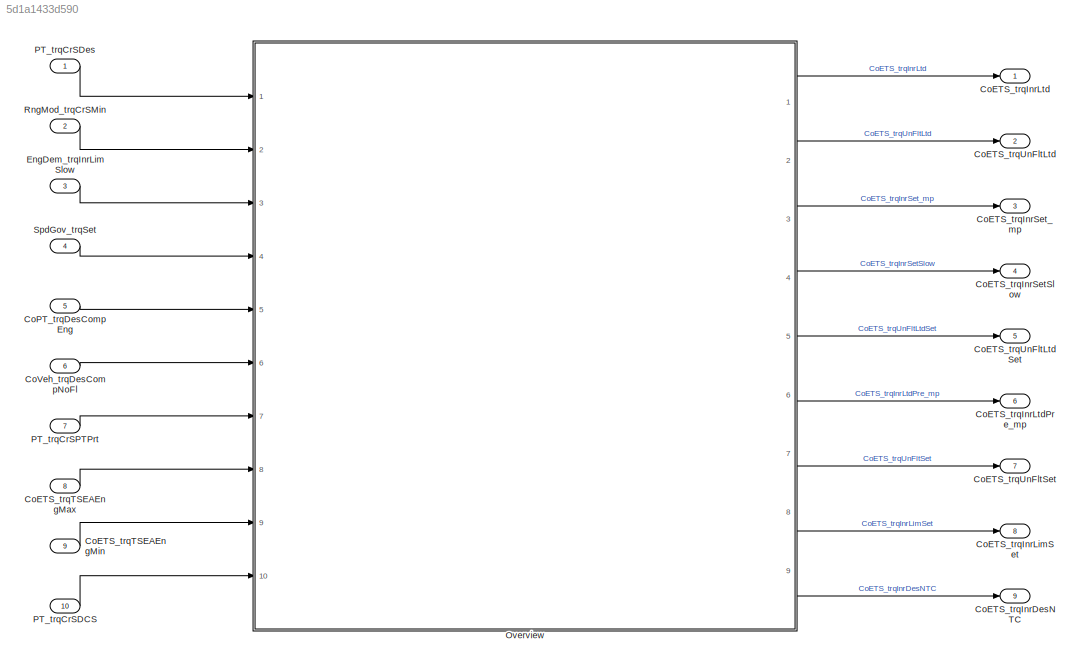
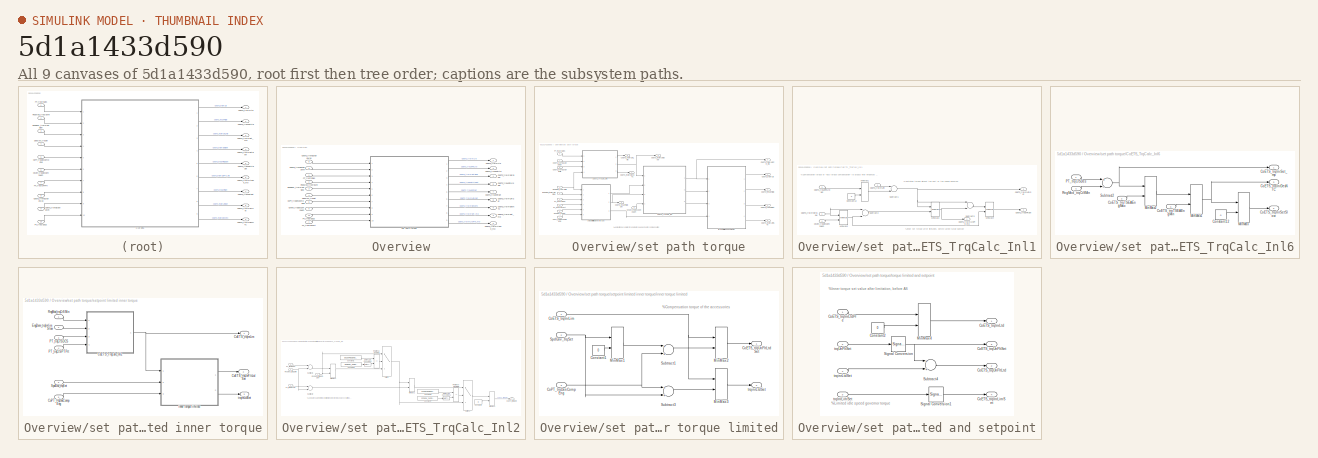
[diagram: thumbnail index - all 9 canvases of the model, root first then tree order]
MODEL slx_5d1a1433d590
KIND model
CONFIG AbsTol = auto
CONFIG EnableMultiTasking = off
CONFIG FixedStep = 0.001
CONFIG MaxStep = auto
CONFIG MinStep = auto
CONFIG RelTol = 1e-3
CONFIG SampleTimeConstraint = Unconstrained
CONFIG Solver = FixedStepDiscrete
CONFIG SolverName = FixedStepDiscrete
CONFIG StartTime = 0.0
CONFIG StopTime = Inf
BLOCK [Outport] CoETS_trqInrDesNTC
  IconDisplay = Port number
  Port = 9
BLOCK [Outport] CoETS_trqInrLimSet
  IconDisplay = Port number
  Port = 8
BLOCK [Outport] CoETS_trqInrLtd
  IconDisplay = Port number
BLOCK [Outport] CoETS_trqInrLtdPre_mp
  IconDisplay = Port number
  Port = 6
BLOCK [Outport] CoETS_trqInrSetSlow
  IconDisplay = Port number
  Port = 4
BLOCK [Outport] CoETS_trqInrSet_mp
  IconDisplay = Port number
  Port = 3
BLOCK [Inport] CoETS_trqTSEAEngMax
  Description = Application parameter for requested propulsion torque to engine(crankshaft torque)
  IconDisplay = Port number
  OutDataTypeStr = Torq
  OutMax = 3276
  OutMin = -3276
  Port = 8
  PortDimensions = [1 1]
  Unit = Nm
BLOCK [Inport] CoETS_trqTSEAEngMin
  Description = minimal crankshaft torque
  IconDisplay = Port number
  OutDataTypeStr = Torq
  OutMax = 3276
  OutMin = -3276
  Port = 9
  PortDimensions = [1 1]
  Unit = Nm
BLOCK [Outport] CoETS_trqUnFltLtd
  IconDisplay = Port number
  Port = 2
BLOCK [Outport] CoETS_trqUnFltLtdSet
  IconDisplay = Port number
  Port = 5
BLOCK [Outport] CoETS_trqUnFltSet
  IconDisplay = Port number
  Port = 7
BLOCK [Inport] CoPT_trqDesCompEng
  Description = inner engine limted lead torque
  IconDisplay = Port number
  OutDataTypeStr = Torq
  OutMax = 3276
  OutMin = -3276
  Port = 5
  PortDimensions = [1 1]
  Unit = Nm
BLOCK [Inport] CoVeh_trqDesCompNoFl
  Description = lead torque of SpdGov on the air path
  IconDisplay = Port number
  OutDataTypeStr = Torq
  OutMax = 3000
  OutMin = -3000
  Port = 6
  PortDimensions = [1 1]
  Unit = Nm
BLOCK [Inport] EngDem_trqInrLimSlow
  Description = status speed control SpdGov
  IconDisplay = Port number
  OutDataTypeStr = Torq
  OutMax = 3276.7
  OutMin = -3276.8
  Port = 3
  PortDimensions = [1 1]
BLOCK [SubSystem] Overview
  Ports = [10, 9]
  RequestExecContextInheritance = off
BLOCK [Outport] Overview/CoETS_trqInrDesNTC
  Description = Additional desired engine friction Nm
  IconDisplay = Port number
  OutMax = 3276
  OutMin = -3276
  Port = 9
  Tag = Nm
BLOCK [Outport] Overview/CoETS_trqInrLimSet
  Description = Limitation torque without the part of the speed governor
  IconDisplay = Port number
  OutMax = 3000
  OutMin = -3000
  Port = 8
  Tag = Nm
BLOCK [Outport] Overview/CoETS_trqInrLtd
  Description = inner torque set value after limitation, before AS
  IconDisplay = Port number
  OutMax = 3000
  OutMin = -3000
  Tag = Nm
BLOCK [Outport] Overview/CoETS_trqInrLtdPre_mp
  Description = inner set torque after limitation, before active surge damper
  IconDisplay = Port number
  OutMax = 3276
  OutMin = -3276
  Port = 6
  Tag = Nm
BLOCK [Outport] Overview/CoETS_trqInrSetSlow
  Description = Filtered inner torque ( positive torque) desired value (standard signal path) generated out of CoPT_trqDesEng
  IconDisplay = Port number
  OutMax = 3276
  OutMin = -3276
  Port = 4
  Tag = Nm
BLOCK [Outport] Overview/CoETS_trqInrSet_mp
  Description = Intermediate inner torque for the set path without filteration
  IconDisplay = Port number
  OutMax = 3276
  OutMin = -3276
  Port = 3
  Tag = Nm
BLOCK [Inport] Overview/CoETS_trqTSEAEngMax
  Description = torque request to engine intervention decrement(Max)
  IconDisplay = Port number
  OutMax = 3276
  OutMin = -3276
  Port = 8
  Tag = Nm
BLOCK [Inport] Overview/CoETS_trqTSEAEngMin
  Description = torque request to engine intervention increment(Min)
  IconDisplay = Port number
  OutMax = 3276
  OutMin = -3276
  Port = 9
  Tag = Nm
BLOCK [Outport] Overview/CoETS_trqUnFltLtd
  Description = Limited idle speed governor torque
  IconDisplay = Port number
  OutMax = 3276
  OutMin = -3276
  Port = 2
  Tag = Nm
BLOCK [Outport] Overview/CoETS_trqUnFltLtdSet
  Description = Compensation torque of the accessories
  IconDisplay = Port number
  OutMax = 3276
  OutMin = -3276
  Port = 5
  Tag = Nm
BLOCK [Outport] Overview/CoETS_trqUnFltSet
  Description = Compensation torque of "loss torque compensation" to bypass filter influences on the set path which is partly compensated
  IconDisplay = Port number
  OutMax = 3276
  OutMin = -3276
  Port = 7
  Tag = Nm
BLOCK [Inport] Overview/CoPT_trqDesCompEng
  Description = Application parameter for engine torque desired for compensation
  IconDisplay = Port number
  OutMax = 3276
  OutMin = -3276
  Port = 5
  Tag = Nm
BLOCK [Inport] Overview/CoVeh_trqDesCompNoFl
  Description = compensation torque with the shares,which not slur by the drive behaviour filter
  IconDisplay = Port number
  OutMax = 3000
  OutMin = -3000
  Port = 6
  Tag = Nm
BLOCK [Inport] Overview/EngDem_trqInrLimSlow
  Description = inner engine limted torque for Slow Path
  IconDisplay = Port number
  OutMax = 3276.7
  OutMin = -3276.8
  Port = 3
  Tag = Nm
BLOCK [Inport] Overview/PT_trqCrSDCS
  Description = crankshaft torque for request decrcment
  IconDisplay = Port number
  OutMax = 3000
  OutMin = -3000
  Port = 10
  Tag = Nm
BLOCK [Inport] Overview/PT_trqCrSDes
  Description = Application parameter for requested propulsion torque to engine(crankshaft torque)
  IconDisplay = Port number
  OutMax = 3000
  OutMin = -3000
  Tag = Nm
BLOCK [Inport] Overview/PT_trqCrSPTPrt
  Description = Application parameter for powertrain protection train protection torque(crankshaft torque)
  IconDisplay = Port number
  OutMax = 3000
  OutMin = -3000
  Port = 7
  Tag = Nm
BLOCK [Inport] Overview/RngMod_trqCrSMin
  Description = minimal crankshaft torque
  IconDisplay = Port number
  OutMax = 3276.7
  OutMin = -3276.8
  Port = 2
  Tag = Nm
BLOCK [Inport] Overview/SpdGov_trqSet
  Description = Set point torque of SpdGov on the fuel path
  IconDisplay = Port number
  OutMax = 3000
  OutMin = -3000
  Port = 4
  Tag = Nm
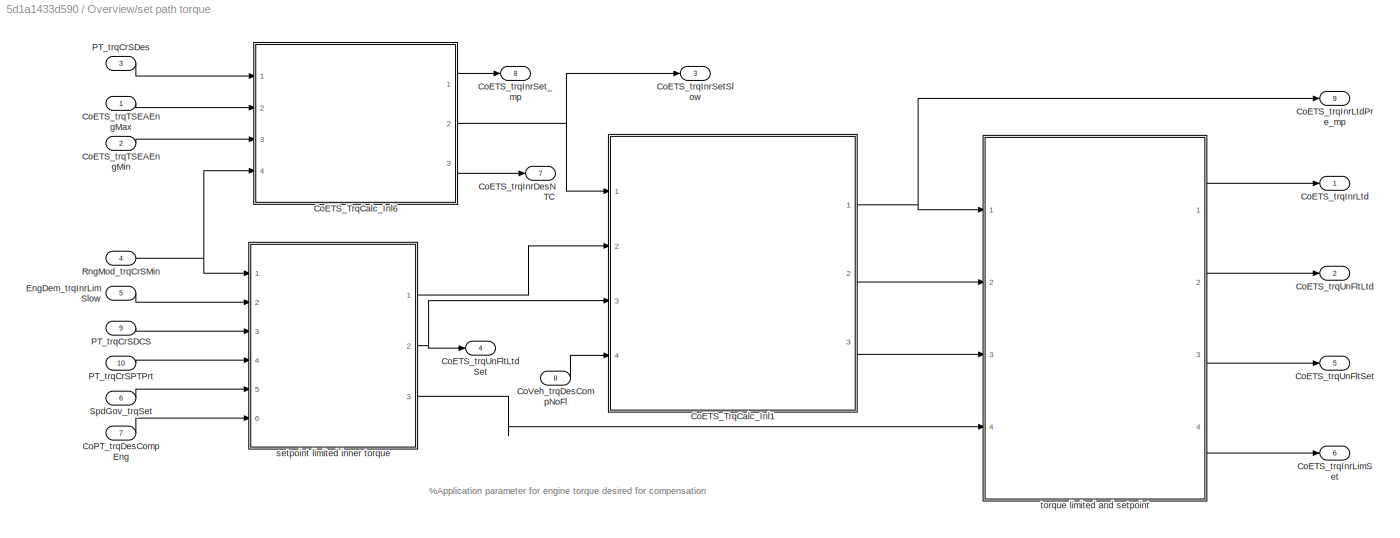
BLOCK [SubSystem] Overview/set path torque
  Ports = [10, 9]
  RequestExecContextInheritance = off
BLOCK [SubSystem] Overview/set path torque/CoETS_TrqCalc_Inl1
  Ports = [4, 3]
  RequestExecContextInheritance = off
BLOCK [Inport] Overview/set path torque/CoETS_TrqCalc_Inl1/CoETS_trqInrLim
  IconDisplay = Port number
  Port = 2
BLOCK [Outport] Overview/set path torque/CoETS_TrqCalc_Inl1/CoETS_trqInrLimSet
  IconDisplay = Port number
  Port = 3
BLOCK [Outport] Overview/set path torque/CoETS_TrqCalc_Inl1/CoETS_trqInrLtdPre_mp
  IconDisplay = Port number
BLOCK [Inport] Overview/set path torque/CoETS_TrqCalc_Inl1/CoETS_trqInrSetSlow
  IconDisplay = Port number
BLOCK [Inport] Overview/set path torque/CoETS_TrqCalc_Inl1/CoETS_trqUnFltLtdSet
  IconDisplay = Port number
  Port = 3
BLOCK [Outport] Overview/set path torque/CoETS_TrqCalc_Inl1/CoETS_trqUnFltSet
  IconDisplay = Port number
  Port = 2
BLOCK [Inport] Overview/set path torque/CoETS_TrqCalc_Inl1/CoVeh_trqDesCompNoFl
  IconDisplay = Port number
  Port = 4
BLOCK [Constant] Overview/set path torque/CoETS_TrqCalc_Inl1/Constant12
  OutDataTypeStr = Inherit: Inherit via back propagation
  Value = 0
  VectorParams1D = off
BLOCK [MinMax] Overview/set path torque/CoETS_TrqCalc_Inl1/MinMax1
  Function = max
  Inputs = 2
  Ports = [2, 1]
  SaturateOnIntegerOverflow = off
BLOCK [MinMax] Overview/set path torque/CoETS_TrqCalc_Inl1/MinMax2
  Inputs = 2
  Ports = [2, 1]
  SaturateOnIntegerOverflow = off
BLOCK [MinMax] Overview/set path torque/CoETS_TrqCalc_Inl1/MinMax3
  Inputs = 2
  Ports = [2, 1]
  SaturateOnIntegerOverflow = off
BLOCK [MinMax] Overview/set path torque/CoETS_TrqCalc_Inl1/MinMax4
  Inputs = 2
  Ports = [2, 1]
  SaturateOnIntegerOverflow = off
BLOCK [Sum] Overview/set path torque/CoETS_TrqCalc_Inl1/Subtract1
  Inputs = +-
  OutDataTypeStr = Inherit: Inherit via back propagation
  Ports = [2, 1]
BLOCK [Sum] Overview/set path torque/CoETS_TrqCalc_Inl1/Subtract2
  Inputs = +-
  OutDataTypeStr = Inherit: Inherit via back propagation
  Ports = [2, 1]
BLOCK [Sum] Overview/set path torque/CoETS_TrqCalc_Inl1/Subtract3
  Inputs = +-
  OutDataTypeStr = Inherit: Inherit via back propagation
  Ports = [2, 1]
BLOCK [SubSystem] Overview/set path torque/CoETS_TrqCalc_Inl6
  Ports = [4, 3]
  RequestExecContextInheritance = off
BLOCK [Outport] Overview/set path torque/CoETS_TrqCalc_Inl6/CoETS_trqInrDesNTC
  IconDisplay = Port number
  Port = 3
BLOCK [Outport] Overview/set path torque/CoETS_TrqCalc_Inl6/CoETS_trqInrSetSlow
  IconDisplay = Port number
  Port = 2
BLOCK [Outport] Overview/set path torque/CoETS_TrqCalc_Inl6/CoETS_trqInrSet_mp
  IconDisplay = Port number
BLOCK [Inport] Overview/set path torque/CoETS_TrqCalc_Inl6/CoETS_trqTSEAEngMax
  IconDisplay = Port number
  Port = 2
BLOCK [Inport] Overview/set path torque/CoETS_TrqCalc_Inl6/CoETS_trqTSEAEngMin
  IconDisplay = Port number
  Port = 3
BLOCK [Constant] Overview/set path torque/CoETS_TrqCalc_Inl6/Constant12
  OutDataTypeStr = Inherit: Inherit via back propagation
  Value = 0
  VectorParams1D = off
BLOCK [MinMax] Overview/set path torque/CoETS_TrqCalc_Inl6/MinMax
  Function = max
  Inputs = 2
  Ports = [2, 1]
  SaturateOnIntegerOverflow = off
BLOCK [MinMax] Overview/set path torque/CoETS_TrqCalc_Inl6/MinMax1
  Function = max
  Inputs = 2
  Ports = [2, 1]
  SaturateOnIntegerOverflow = off
BLOCK [MinMax] Overview/set path torque/CoETS_TrqCalc_Inl6/MinMax2
  Inputs = 2
  Ports = [2, 1]
  SaturateOnIntegerOverflow = off
BLOCK [Inport] Overview/set path torque/CoETS_TrqCalc_Inl6/PT_trqCrSDes
  IconDisplay = Port number
BLOCK [Inport] Overview/set path torque/CoETS_TrqCalc_Inl6/RngMod_trqCrSMin
  IconDisplay = Port number
  Port = 4
BLOCK [Sum] Overview/set path torque/CoETS_TrqCalc_Inl6/Subtract2
  Inputs = +-
  OutDataTypeStr = Inherit: Inherit via back propagation
  Ports = [2, 1]
BLOCK [Outport] Overview/set path torque/CoETS_trqInrDesNTC
  IconDisplay = Port number
  Port = 7
BLOCK [Outport] Overview/set path torque/CoETS_trqInrLimSet
  IconDisplay = Port number
  Port = 6
BLOCK [Outport] Overview/set path torque/CoETS_trqInrLtd
  IconDisplay = Port number
BLOCK [Outport] Overview/set path torque/CoETS_trqInrLtdPre_mp
  IconDisplay = Port number
  Port = 9
BLOCK [Outport] Overview/set path torque/CoETS_trqInrSetSlow
  IconDisplay = Port number
  Port = 3
BLOCK [Outport] Overview/set path torque/CoETS_trqInrSet_mp
  IconDisplay = Port number
  Port = 8
BLOCK [Inport] Overview/set path torque/CoETS_trqTSEAEngMax
  IconDisplay = Port number
BLOCK [Inport] Overview/set path torque/CoETS_trqTSEAEngMin
  IconDisplay = Port number
  Port = 2
BLOCK [Outport] Overview/set path torque/CoETS_trqUnFltLtd
  IconDisplay = Port number
  Port = 2
BLOCK [Outport] Overview/set path torque/CoETS_trqUnFltLtdSet
  IconDisplay = Port number
  Port = 4
BLOCK [Outport] Overview/set path torque/CoETS_trqUnFltSet
  IconDisplay = Port number
  Port = 5
BLOCK [Inport] Overview/set path torque/CoPT_trqDesCompEng
  IconDisplay = Port number
  Port = 7
BLOCK [Inport] Overview/set path torque/CoVeh_trqDesCompNoFl
  IconDisplay = Port number
  Port = 8
BLOCK [Inport] Overview/set path torque/EngDem_trqInrLimSlow
  IconDisplay = Port number
  Port = 5
BLOCK [Inport] Overview/set path torque/PT_trqCrSDCS
  IconDisplay = Port number
  Port = 9
BLOCK [Inport] Overview/set path torque/PT_trqCrSDes
  IconDisplay = Port number
  Port = 3
BLOCK [Inport] Overview/set path torque/PT_trqCrSPTPrt
  IconDisplay = Port number
  Port = 10
BLOCK [Inport] Overview/set path torque/RngMod_trqCrSMin
  IconDisplay = Port number
  Port = 4
BLOCK [Inport] Overview/set path torque/SpdGov_trqSet
  IconDisplay = Port number
  Port = 6
BLOCK [SubSystem] Overview/set path torque/setpoint limited inner torque
  Ports = [6, 3]
  RequestExecContextInheritance = off
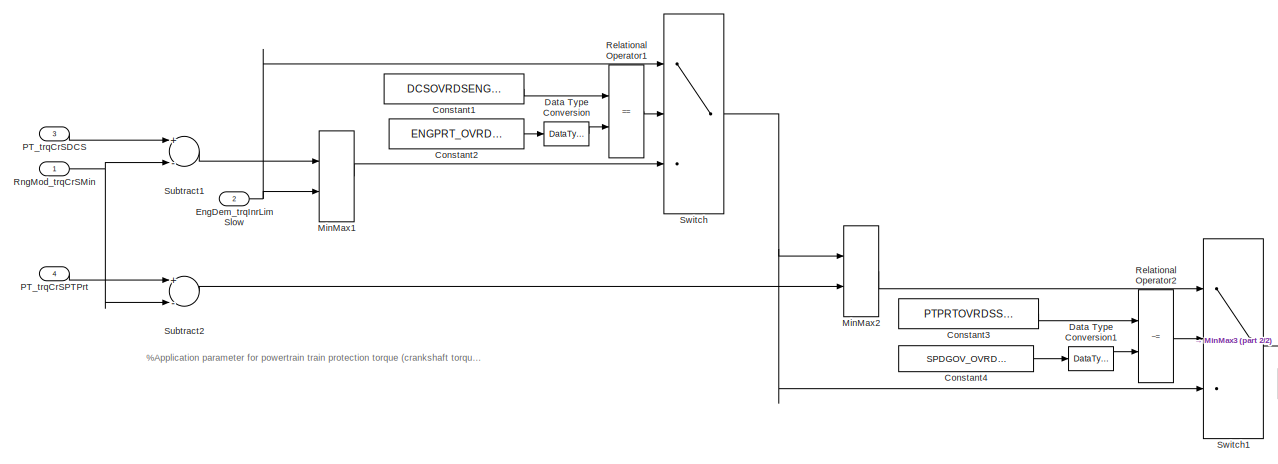
[diagram: Overview/set path torque/setpoint limited inner torque/CoETS_TrqCalc_Inl2 - part 1/2, most of the canvas]
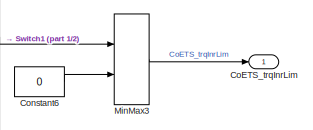
[diagram: Overview/set path torque/setpoint limited inner torque/CoETS_TrqCalc_Inl2 - part 2/2, bottom right region]
BLOCK [SubSystem] Overview/set path torque/setpoint limited inner torque/CoETS_TrqCalc_Inl2
  Ports = [4, 1]
  RequestExecContextInheritance = off
BLOCK [Outport] Overview/set path torque/setpoint limited inner torque/CoETS_TrqCalc_Inl2/CoETS_trqInrLim
  IconDisplay = Port number
BLOCK [Constant] Overview/set path torque/setpoint limited inner torque/CoETS_TrqCalc_Inl2/Constant1
  Value = DCSOVRDSENGPRT_SY
  VectorParams1D = off
BLOCK [Constant] Overview/set path torque/setpoint limited inner torque/CoETS_TrqCalc_Inl2/Constant2
  Value = ENGPRT_OVRDS_DCS
  VectorParams1D = off
BLOCK [Constant] Overview/set path torque/setpoint limited inner torque/CoETS_TrqCalc_Inl2/Constant3
  Value = PTPRTOVRDSSPDGOV_SY
  VectorParams1D = off
BLOCK [Constant] Overview/set path torque/setpoint limited inner torque/CoETS_TrqCalc_Inl2/Constant4
  Value = SPDGOV_OVRDS_PTPRT
  VectorParams1D = off
BLOCK [Constant] Overview/set path torque/setpoint limited inner torque/CoETS_TrqCalc_Inl2/Constant6
  OutDataTypeStr = Inherit: Inherit via back propagation
  Value = 0
  VectorParams1D = off
BLOCK [DataTypeConversion] Overview/set path torque/setpoint limited inner torque/CoETS_TrqCalc_Inl2/Data Type Conversion
  RndMeth = Floor
  SaturateOnIntegerOverflow = off
BLOCK [DataTypeConversion] Overview/set path torque/setpoint limited inner torque/CoETS_TrqCalc_Inl2/Data Type Conversion1
  RndMeth = Floor
  SaturateOnIntegerOverflow = off
BLOCK [Inport] Overview/set path torque/setpoint limited inner torque/CoETS_TrqCalc_Inl2/EngDem_trqInrLimSlow
  IconDisplay = Port number
  Port = 2
BLOCK [MinMax] Overview/set path torque/setpoint limited inner torque/CoETS_TrqCalc_Inl2/MinMax1
  Function = max
  Inputs = 2
  Ports = [2, 1]
  SaturateOnIntegerOverflow = off
BLOCK [MinMax] Overview/set path torque/setpoint limited inner torque/CoETS_TrqCalc_Inl2/MinMax2
  Inputs = 2
  Ports = [2, 1]
  SaturateOnIntegerOverflow = off
BLOCK [MinMax] Overview/set path torque/setpoint limited inner torque/CoETS_TrqCalc_Inl2/MinMax3
  Function = max
  Inputs = 2
  Ports = [2, 1]
  SaturateOnIntegerOverflow = off
BLOCK [Inport] Overview/set path torque/setpoint limited inner torque/CoETS_TrqCalc_Inl2/PT_trqCrSDCS
  IconDisplay = Port number
  Port = 3
BLOCK [Inport] Overview/set path torque/setpoint limited inner torque/CoETS_TrqCalc_Inl2/PT_trqCrSPTPrt
  IconDisplay = Port number
  Port = 4
BLOCK [RelationalOperator] Overview/set path torque/setpoint limited inner torque/CoETS_TrqCalc_Inl2/Relational Operator1
  Operator = ==
  OutDataTypeStr = boolean
  Ports = [2, 1]
  RndMeth = Simplest
BLOCK [RelationalOperator] Overview/set path torque/setpoint limited inner torque/CoETS_TrqCalc_Inl2/Relational Operator2
  Operator = ~=
  OutDataTypeStr = boolean
  Ports = [2, 1]
  RndMeth = Simplest
BLOCK [Inport] Overview/set path torque/setpoint limited inner torque/CoETS_TrqCalc_Inl2/RngMod_trqCrSMin
  IconDisplay = Port number
BLOCK [Sum] Overview/set path torque/setpoint limited inner torque/CoETS_TrqCalc_Inl2/Subtract1
  Inputs = +-
  OutDataTypeStr = Inherit: Inherit via back propagation
  Ports = [2, 1]
BLOCK [Sum] Overview/set path torque/setpoint limited inner torque/CoETS_TrqCalc_Inl2/Subtract2
  Inputs = +-
  OutDataTypeStr = Inherit: Inherit via back propagation
  Ports = [2, 1]
BLOCK [Switch] Overview/set path torque/setpoint limited inner torque/CoETS_TrqCalc_Inl2/Switch
  Criteria = u2 ~= 0
  OutDataTypeStr = Inherit: Inherit via back propagation
BLOCK [Switch] Overview/set path torque/setpoint limited inner torque/CoETS_TrqCalc_Inl2/Switch1
  Criteria = u2 ~= 0
  OutDataTypeStr = Inherit: Inherit via back propagation
BLOCK [Outport] Overview/set path torque/setpoint limited inner torque/CoETS_trqInrLim
  IconDisplay = Port number
BLOCK [Outport] Overview/set path torque/setpoint limited inner torque/CoETS_trqUnFltLtdSet
  IconDisplay = Port number
  Port = 2
BLOCK [Inport] Overview/set path torque/setpoint limited inner torque/CoPT_trqDesCompEng
  IconDisplay = Port number
  Port = 6
BLOCK [Inport] Overview/set path torque/setpoint limited inner torque/EngDem_trqInrLimSlow
  IconDisplay = Port number
  Port = 2
BLOCK [Inport] Overview/set path torque/setpoint limited inner torque/PT_trqCrSDCS
  IconDisplay = Port number
  Port = 3
BLOCK [Inport] Overview/set path torque/setpoint limited inner torque/PT_trqCrSPTPrt
  IconDisplay = Port number
  Port = 4
BLOCK [Inport] Overview/set path torque/setpoint limited inner torque/RngMod_trqCrSMin
  IconDisplay = Port number
BLOCK [Inport] Overview/set path torque/setpoint limited inner torque/SpdGov_trqSet
  IconDisplay = Port number
  Port = 5
BLOCK [SubSystem] Overview/set path torque/setpoint limited inner torque/inner torque limited
  Ports = [3, 2]
  RequestExecContextInheritance = off
BLOCK [Inport] Overview/set path torque/setpoint limited inner torque/inner torque limited/CoETS_trqInrLim
  IconDisplay = Port number
BLOCK [Outport] Overview/set path torque/setpoint limited inner torque/inner torque limited/CoETS_trqUnFltLtdSet
  IconDisplay = Port number
BLOCK [Inport] Overview/set path torque/setpoint limited inner torque/inner torque limited/CoPT_trqDesCompEng
  IconDisplay = Port number
  Port = 3
BLOCK [Constant] Overview/set path torque/setpoint limited inner torque/inner torque limited/Constant1
  OutDataTypeStr = Inherit: Inherit via back propagation
  Value = 0
  VectorParams1D = off
BLOCK [MinMax] Overview/set path torque/setpoint limited inner torque/inner torque limited/MinMax1
  Function = max
  Inputs = 2
  Ports = [2, 1]
  SaturateOnIntegerOverflow = off
BLOCK [MinMax] Overview/set path torque/setpoint limited inner torque/inner torque limited/MinMax2
  Inputs = 2
  Ports = [2, 1]
  SaturateOnIntegerOverflow = off
BLOCK [MinMax] Overview/set path torque/setpoint limited inner torque/inner torque limited/MinMax3
  Inputs = 2
  Ports = [2, 1]
  SaturateOnIntegerOverflow = off
BLOCK [Inport] Overview/set path torque/setpoint limited inner torque/inner torque limited/SpdGov_trqSet
  IconDisplay = Port number
  Port = 2
BLOCK [Sum] Overview/set path torque/setpoint limited inner torque/inner torque limited/Subtract1
  OutDataTypeStr = Inherit: Inherit via back propagation
  Ports = [2, 1]
BLOCK [Sum] Overview/set path torque/setpoint limited inner torque/inner torque limited/Subtract3
  OutDataTypeStr = Inherit: Inherit via back propagation
  Ports = [2, 1]
BLOCK [Outport] Overview/set path torque/setpoint limited inner torque/inner torque limited/trqinrLtdSet
  IconDisplay = Port number
  Port = 2
BLOCK [Outport] Overview/set path torque/setpoint limited inner torque/trqinrLtdSet
  IconDisplay = Port number
  Port = 3
BLOCK [SubSystem] Overview/set path torque/torque limited and setpoint
  Ports = [4, 4]
  RequestExecContextInheritance = off
BLOCK [Outport] Overview/set path torque/torque limited and setpoint/CoETS_trqInrLimSet
  IconDisplay = Port number
  Port = 4
BLOCK [Outport] Overview/set path torque/torque limited and setpoint/CoETS_trqInrLtd
  IconDisplay = Port number
BLOCK [Inport] Overview/set path torque/torque limited and setpoint/CoETS_trqInrLtdPre
  IconDisplay = Port number
BLOCK [Outport] Overview/set path torque/torque limited and setpoint/CoETS_trqUnFltLtd
  IconDisplay = Port number
  Port = 2
BLOCK [Outport] Overview/set path torque/torque limited and setpoint/CoETS_trqUnFltSet
  IconDisplay = Port number
  Port = 3
BLOCK [Constant] Overview/set path torque/torque limited and setpoint/Constant2
  OutDataTypeStr = Inherit: Inherit via back propagation
  Value = 0
  VectorParams1D = off
BLOCK [MinMax] Overview/set path torque/torque limited and setpoint/MinMax4
  Function = max
  Inputs = 2
  Ports = [2, 1]
  SaturateOnIntegerOverflow = off
BLOCK [SignalConversion] Overview/set path torque/torque limited and setpoint/Signal Conversion
  OverrideOpt = off
BLOCK [SignalConversion] Overview/set path torque/torque limited and setpoint/Signal Conversion1
  OverrideOpt = off
BLOCK [Sum] Overview/set path torque/torque limited and setpoint/Subtract4
  OutDataTypeStr = Inherit: Inherit via back propagation
  Ports = [2, 1]
BLOCK [Inport] Overview/set path torque/torque limited and setpoint/trqInrLimSet
  IconDisplay = Port number
  Port = 3
BLOCK [Inport] Overview/set path torque/torque limited and setpoint/trqUnFltSet
  IconDisplay = Port number
  Port = 2
BLOCK [Inport] Overview/set path torque/torque limited and setpoint/trqinrLtdSet
  IconDisplay = Port number
  Port = 4
BLOCK [Inport] PT_trqCrSDCS
  Description = inner engine limted torque for Slow Path
  IconDisplay = Port number
  OutDataTypeStr = Torq
  OutMax = 3000
  OutMin = -3000
  Port = 10
  PortDimensions = [1 1]
  Unit = Nm
BLOCK [Inport] PT_trqCrSDes
  Description = application parameter for lead torque order to engine for rail pressure control（crankshaft torque）
  IconDisplay = Port number
  OutDataTypeStr = Torq
  OutMax = 3000
  OutMin = -3000
  PortDimensions = [1 1]
  Unit = Nm
BLOCK [Inport] PT_trqCrSPTPrt
  Description = application parameter for lead torque order to engine（crankshaft torque）
  IconDisplay = Port number
  OutDataTypeStr = Torq
  OutMax = 3000
  OutMin = -3000
  Port = 7
  PortDimensions = [1 1]
  Unit = Nm
BLOCK [Inport] RngMod_trqCrSMin
  Description = filtered setpoint torque of SpdGov
  IconDisplay = Port number
  OutDataTypeStr = Torq
  OutMax = 3276.7
  OutMin = -3276.8
  Port = 2
  PortDimensions = [1 1]
  Unit = Nm
BLOCK [Inport] SpdGov_trqSet
  Description = Resulting limiting torque (inner engine torque)
  IconDisplay = Port number
  OutDataTypeStr = Torq
  OutMax = 3000
  OutMin = -3000
  Port = 4
  PortDimensions = [1 1]
  Unit = Nm
ANNOTATION Overview/set path torque: %Application parameter for engine torque desired for compensation
ANNOTATION Overview/set path torque/CoETS_TrqCalc_Inl1: %Compensation torque of "loss torque compensation" to bypass filter influences on the set path which is partly compensated
ANNOTATION Overview/set path torque/CoETS_TrqCalc_Inl1: %Limitation torque without the part of the speed governor
ANNOTATION Overview/set path torque/CoETS_TrqCalc_Inl1: %inner set torque after limitation, before active surge damper
ANNOTATION Overview/set path torque/setpoint limited inner torque/CoETS_TrqCalc_Inl2: %Application parameter for powertrain train protection torque (crankshaft torque)
ANNOTATION Overview/set path torque/setpoint limited inner torque/inner torque limited: %Compensation torque of the accessories
ANNOTATION Overview/set path torque/torque limited and setpoint: %Inner torque set value after limitation, before AS
ANNOTATION Overview/set path torque/torque limited and setpoint: %Limited idle speed governor torque
LINE CoETS_trqTSEAEngMax:1 -> Overview:8
LINE CoETS_trqTSEAEngMin:1 -> Overview:9
LINE CoPT_trqDesCompEng:1 -> Overview:5
LINE CoVeh_trqDesCompNoFl:1 -> Overview:6
LINE EngDem_trqInrLimSlow:1 -> Overview:3
LINE Overview/CoETS_trqTSEAEngMax:1 -> Overview/set path torque:1
LINE Overview/CoETS_trqTSEAEngMin:1 -> Overview/set path torque:2
LINE Overview/CoPT_trqDesCompEng:1 -> Overview/set path torque:7
LINE Overview/CoVeh_trqDesCompNoFl:1 -> Overview/set path torque:8
LINE Overview/EngDem_trqInrLimSlow:1 -> Overview/set path torque:5
LINE Overview/PT_trqCrSDCS:1 -> Overview/set path torque:9
LINE Overview/PT_trqCrSDes:1 -> Overview/set path torque:3
LINE Overview/PT_trqCrSPTPrt:1 -> Overview/set path torque:10
LINE Overview/RngMod_trqCrSMin:1 -> Overview/set path torque:4
LINE Overview/SpdGov_trqSet:1 -> Overview/set path torque:6
LINE Overview/set path torque/CoETS_TrqCalc_Inl1/CoETS_trqInrLim:1 -> Overview/set path torque/CoETS_TrqCalc_Inl1/Subtract1:1
NET Overview/set path torque/CoETS_TrqCalc_Inl1/CoETS_trqInrSetSlow:1 -> Overview/set path torque/CoETS_TrqCalc_Inl1/MinMax2:1, Overview/set path torque/CoETS_TrqCalc_Inl1/Subtract2:1
LINE Overview/set path torque/CoETS_TrqCalc_Inl1/CoETS_trqUnFltLtdSet:1 -> Overview/set path torque/CoETS_TrqCalc_Inl1/MinMax1:1
LINE Overview/set path torque/CoETS_TrqCalc_Inl1/CoVeh_trqDesCompNoFl:1 -> Overview/set path torque/CoETS_TrqCalc_Inl1/MinMax2:2
LINE Overview/set path torque/CoETS_TrqCalc_Inl1/Constant12:1 -> Overview/set path torque/CoETS_TrqCalc_Inl1/MinMax1:2
LINE Overview/set path torque/CoETS_TrqCalc_Inl1/MinMax1:1 -> Overview/set path torque/CoETS_TrqCalc_Inl1/Subtract1:2
NET Overview/set path torque/CoETS_TrqCalc_Inl1/MinMax2:1 -> Overview/set path torque/CoETS_TrqCalc_Inl1/MinMax4:2, Overview/set path torque/CoETS_TrqCalc_Inl1/Subtract2:2
NET Overview/set path torque/CoETS_TrqCalc_Inl1/MinMax3:1 -> Overview/set path torque/CoETS_TrqCalc_Inl1/CoETS_trqInrLtdPre_mp:1, Overview/set path torque/CoETS_TrqCalc_Inl1/Subtract3:2
LINE Overview/set path torque/CoETS_TrqCalc_Inl1/MinMax4:1 -> Overview/set path torque/CoETS_TrqCalc_Inl1/CoETS_trqUnFltSet:1
NET Overview/set path torque/CoETS_TrqCalc_Inl1/Subtract1:1 -> Overview/set path torque/CoETS_TrqCalc_Inl1/CoETS_trqInrLimSet:1, Overview/set path torque/CoETS_TrqCalc_Inl1/MinMax3:1, Overview/set path torque/CoETS_TrqCalc_Inl1/Subtract3:1
LINE Overview/set path torque/CoETS_TrqCalc_Inl1/Subtract2:1 -> Overview/set path torque/CoETS_TrqCalc_Inl1/MinMax3:2
LINE Overview/set path torque/CoETS_TrqCalc_Inl1/Subtract3:1 -> Overview/set path torque/CoETS_TrqCalc_Inl1/MinMax4:1
NET Overview/set path torque/CoETS_TrqCalc_Inl1:1 -> Overview/set path torque/CoETS_trqInrLtdPre_mp:1, Overview/set path torque/torque limited and setpoint:1
LINE Overview/set path torque/CoETS_TrqCalc_Inl1:2 -> Overview/set path torque/torque limited and setpoint:2
LINE Overview/set path torque/CoETS_TrqCalc_Inl1:3 -> Overview/set path torque/torque limited and setpoint:3
LINE Overview/set path torque/CoETS_TrqCalc_Inl6/CoETS_trqTSEAEngMax:1 -> Overview/set path torque/CoETS_TrqCalc_Inl6/MinMax2:2
LINE Overview/set path torque/CoETS_TrqCalc_Inl6/CoETS_trqTSEAEngMin:1 -> Overview/set path torque/CoETS_TrqCalc_Inl6/MinMax1:2
LINE Overview/set path torque/CoETS_TrqCalc_Inl6/Constant12:1 -> Overview/set path torque/CoETS_TrqCalc_Inl6/MinMax:2
NET Overview/set path torque/CoETS_TrqCalc_Inl6/MinMax1:1 -> Overview/set path torque/CoETS_TrqCalc_Inl6/CoETS_trqInrDesNTC:1, Overview/set path torque/CoETS_TrqCalc_Inl6/MinMax:1
LINE Overview/set path torque/CoETS_TrqCalc_Inl6/MinMax2:1 -> Overview/set path torque/CoETS_TrqCalc_Inl6/MinMax1:1
LINE Overview/set path torque/CoETS_TrqCalc_Inl6/MinMax:1 -> Overview/set path torque/CoETS_TrqCalc_Inl6/CoETS_trqInrSetSlow:1
LINE Overview/set path torque/CoETS_TrqCalc_Inl6/PT_trqCrSDes:1 -> Overview/set path torque/CoETS_TrqCalc_Inl6/Subtract2:1
LINE Overview/set path torque/CoETS_TrqCalc_Inl6/RngMod_trqCrSMin:1 -> Overview/set path torque/CoETS_TrqCalc_Inl6/Subtract2:2
NET Overview/set path torque/CoETS_TrqCalc_Inl6/Subtract2:1 -> Overview/set path torque/CoETS_TrqCalc_Inl6/CoETS_trqInrSet_mp:1, Overview/set path torque/CoETS_TrqCalc_Inl6/MinMax2:1
LINE Overview/set path torque/CoETS_TrqCalc_Inl6:1 -> Overview/set path torque/CoETS_trqInrSet_mp:1
NET Overview/set path torque/CoETS_TrqCalc_Inl6:2 -> Overview/set path torque/CoETS_TrqCalc_Inl1:1, Overview/set path torque/CoETS_trqInrSetSlow:1
LINE Overview/set path torque/CoETS_TrqCalc_Inl6:3 -> Overview/set path torque/CoETS_trqInrDesNTC:1
LINE Overview/set path torque/CoETS_trqTSEAEngMax:1 -> Overview/set path torque/CoETS_TrqCalc_Inl6:2
LINE Overview/set path torque/CoETS_trqTSEAEngMin:1 -> Overview/set path torque/CoETS_TrqCalc_Inl6:3
LINE Overview/set path torque/CoPT_trqDesCompEng:1 -> Overview/set path torque/setpoint limited inner torque:6
LINE Overview/set path torque/CoVeh_trqDesCompNoFl:1 -> Overview/set path torque/CoETS_TrqCalc_Inl1:4
LINE Overview/set path torque/EngDem_trqInrLimSlow:1 -> Overview/set path torque/setpoint limited inner torque:2
LINE Overview/set path torque/PT_trqCrSDCS:1 -> Overview/set path torque/setpoint limited inner torque:3
LINE Overview/set path torque/PT_trqCrSDes:1 -> Overview/set path torque/CoETS_TrqCalc_Inl6:1
LINE Overview/set path torque/PT_trqCrSPTPrt:1 -> Overview/set path torque/setpoint limited inner torque:4
NET Overview/set path torque/RngMod_trqCrSMin:1 -> Overview/set path torque/CoETS_TrqCalc_Inl6:4, Overview/set path torque/setpoint limited inner torque:1
LINE Overview/set path torque/SpdGov_trqSet:1 -> Overview/set path torque/setpoint limited inner torque:5
LINE Overview/set path torque/setpoint limited inner torque/CoETS_TrqCalc_Inl2/Constant1:1 -> Overview/set path torque/setpoint limited inner torque/CoETS_TrqCalc_Inl2/Relational Operator1:1
LINE Overview/set path torque/setpoint limited inner torque/CoETS_TrqCalc_Inl2/Constant2:1 -> Overview/set path torque/setpoint limited inner torque/CoETS_TrqCalc_Inl2/Data Type Conversion:1
LINE Overview/set path torque/setpoint limited inner torque/CoETS_TrqCalc_Inl2/Constant3:1 -> Overview/set path torque/setpoint limited inner torque/CoETS_TrqCalc_Inl2/Relational Operator2:1
LINE Overview/set path torque/setpoint limited inner torque/CoETS_TrqCalc_Inl2/Constant4:1 -> Overview/set path torque/setpoint limited inner torque/CoETS_TrqCalc_Inl2/Data Type Conversion1:1
LINE Overview/set path torque/setpoint limited inner torque/CoETS_TrqCalc_Inl2/Constant6:1 -> Overview/set path torque/setpoint limited inner torque/CoETS_TrqCalc_Inl2/MinMax3:2
LINE Overview/set path torque/setpoint limited inner torque/CoETS_TrqCalc_Inl2/Data Type Conversion1:1 -> Overview/set path torque/setpoint limited inner torque/CoETS_TrqCalc_Inl2/Relational Operator2:2
LINE Overview/set path torque/setpoint limited inner torque/CoETS_TrqCalc_Inl2/Data Type Conversion:1 -> Overview/set path torque/setpoint limited inner torque/CoETS_TrqCalc_Inl2/Relational Operator1:2
NET Overview/set path torque/setpoint limited inner torque/CoETS_TrqCalc_Inl2/EngDem_trqInrLimSlow:1 -> Overview/set path torque/setpoint limited inner torque/CoETS_TrqCalc_Inl2/MinMax1:2, Overview/set path torque/setpoint limited inner torque/CoETS_TrqCalc_Inl2/Switch:1
LINE Overview/set path torque/setpoint limited inner torque/CoETS_TrqCalc_Inl2/MinMax1:1 -> Overview/set path torque/setpoint limited inner torque/CoETS_TrqCalc_Inl2/Switch:3
LINE Overview/set path torque/setpoint limited inner torque/CoETS_TrqCalc_Inl2/MinMax2:1 -> Overview/set path torque/setpoint limited inner torque/CoETS_TrqCalc_Inl2/Switch1:1
LINE Overview/set path torque/setpoint limited inner torque/CoETS_TrqCalc_Inl2/MinMax3:1 -> Overview/set path torque/setpoint limited inner torque/CoETS_TrqCalc_Inl2/CoETS_trqInrLim:1
LINE Overview/set path torque/setpoint limited inner torque/CoETS_TrqCalc_Inl2/PT_trqCrSDCS:1 -> Overview/set path torque/setpoint limited inner torque/CoETS_TrqCalc_Inl2/Subtract1:1
LINE Overview/set path torque/setpoint limited inner torque/CoETS_TrqCalc_Inl2/PT_trqCrSPTPrt:1 -> Overview/set path torque/setpoint limited inner torque/CoETS_TrqCalc_Inl2/Subtract2:1
LINE Overview/set path torque/setpoint limited inner torque/CoETS_TrqCalc_Inl2/Relational Operator1:1 -> Overview/set path torque/setpoint limited inner torque/CoETS_TrqCalc_Inl2/Switch:2
LINE Overview/set path torque/setpoint limited inner torque/CoETS_TrqCalc_Inl2/Relational Operator2:1 -> Overview/set path torque/setpoint limited inner torque/CoETS_TrqCalc_Inl2/Switch1:2
NET Overview/set path torque/setpoint limited inner torque/CoETS_TrqCalc_Inl2/RngMod_trqCrSMin:1 -> Overview/set path torque/setpoint limited inner torque/CoETS_TrqCalc_Inl2/Subtract1:2, Overview/set path torque/setpoint limited inner torque/CoETS_TrqCalc_Inl2/Subtract2:2
LINE Overview/set path torque/setpoint limited inner torque/CoETS_TrqCalc_Inl2/Subtract1:1 -> Overview/set path torque/setpoint limited inner torque/CoETS_TrqCalc_Inl2/MinMax1:1
LINE Overview/set path torque/setpoint limited inner torque/CoETS_TrqCalc_Inl2/Subtract2:1 -> Overview/set path torque/setpoint limited inner torque/CoETS_TrqCalc_Inl2/MinMax2:2
LINE Overview/set path torque/setpoint limited inner torque/CoETS_TrqCalc_Inl2/Switch1:1 -> Overview/set path torque/setpoint limited inner torque/CoETS_TrqCalc_Inl2/MinMax3:1
NET Overview/set path torque/setpoint limited inner torque/CoETS_TrqCalc_Inl2/Switch:1 -> Overview/set path torque/setpoint limited inner torque/CoETS_TrqCalc_Inl2/MinMax2:1, Overview/set path torque/setpoint limited inner torque/CoETS_TrqCalc_Inl2/Switch1:3
NET Overview/set path torque/setpoint limited inner torque/CoETS_TrqCalc_Inl2:1 -> Overview/set path torque/setpoint limited inner torque/CoETS_trqInrLim:1, Overview/set path torque/setpoint limited inner torque/inner torque limited:1
LINE Overview/set path torque/setpoint limited inner torque/CoPT_trqDesCompEng:1 -> Overview/set path torque/setpoint limited inner torque/inner torque limited:3
LINE Overview/set path torque/setpoint limited inner torque/EngDem_trqInrLimSlow:1 -> Overview/set path torque/setpoint limited inner torque/CoETS_TrqCalc_Inl2:2
LINE Overview/set path torque/setpoint limited inner torque/PT_trqCrSDCS:1 -> Overview/set path torque/setpoint limited inner torque/CoETS_TrqCalc_Inl2:3
LINE Overview/set path torque/setpoint limited inner torque/PT_trqCrSPTPrt:1 -> Overview/set path torque/setpoint limited inner torque/CoETS_TrqCalc_Inl2:4
LINE Overview/set path torque/setpoint limited inner torque/RngMod_trqCrSMin:1 -> Overview/set path torque/setpoint limited inner torque/CoETS_TrqCalc_Inl2:1
LINE Overview/set path torque/setpoint limited inner torque/SpdGov_trqSet:1 -> Overview/set path torque/setpoint limited inner torque/inner torque limited:2
NET Overview/set path torque/setpoint limited inner torque/inner torque limited/CoETS_trqInrLim:1 -> Overview/set path torque/setpoint limited inner torque/inner torque limited/MinMax2:1, Overview/set path torque/setpoint limited inner torque/inner torque limited/MinMax3:1
NET Overview/set path torque/setpoint limited inner torque/inner torque limited/CoPT_trqDesCompEng:1 -> Overview/set path torque/setpoint limited inner torque/inner torque limited/Subtract1:2, Overview/set path torque/setpoint limited inner torque/inner torque limited/Subtract3:1
LINE Overview/set path torque/setpoint limited inner torque/inner torque limited/Constant1:1 -> Overview/set path torque/setpoint limited inner torque/inner torque limited/MinMax1:2
LINE Overview/set path torque/setpoint limited inner torque/inner torque limited/MinMax1:1 -> Overview/set path torque/setpoint limited inner torque/inner torque limited/Subtract1:1
LINE Overview/set path torque/setpoint limited inner torque/inner torque limited/MinMax2:1 -> Overview/set path torque/setpoint limited inner torque/inner torque limited/CoETS_trqUnFltLtdSet:1
LINE Overview/set path torque/setpoint limited inner torque/inner torque limited/MinMax3:1 -> Overview/set path torque/setpoint limited inner torque/inner torque limited/trqinrLtdSet:1
NET Overview/set path torque/setpoint limited inner torque/inner torque limited/SpdGov_trqSet:1 -> Overview/set path torque/setpoint limited inner torque/inner torque limited/MinMax1:1, Overview/set path torque/setpoint limited inner torque/inner torque limited/Subtract3:2
LINE Overview/set path torque/setpoint limited inner torque/inner torque limited/Subtract1:1 -> Overview/set path torque/setpoint limited inner torque/inner torque limited/MinMax2:2
LINE Overview/set path torque/setpoint limited inner torque/inner torque limited/Subtract3:1 -> Overview/set path torque/setpoint limited inner torque/inner torque limited/MinMax3:2
LINE Overview/set path torque/setpoint limited inner torque/inner torque limited:1 -> Overview/set path torque/setpoint limited inner torque/CoETS_trqUnFltLtdSet:1
LINE Overview/set path torque/setpoint limited inner torque/inner torque limited:2 -> Overview/set path torque/setpoint limited inner torque/trqinrLtdSet:1
LINE Overview/set path torque/setpoint limited inner torque:1 -> Overview/set path torque/CoETS_TrqCalc_Inl1:2
NET Overview/set path torque/setpoint limited inner torque:2 -> Overview/set path torque/CoETS_TrqCalc_Inl1:3, Overview/set path torque/CoETS_trqUnFltLtdSet:1
LINE Overview/set path torque/setpoint limited inner torque:3 -> Overview/set path torque/torque limited and setpoint:4
LINE Overview/set path torque/torque limited and setpoint/CoETS_trqInrLtdPre:1 -> Overview/set path torque/torque limited and setpoint/MinMax4:1
LINE Overview/set path torque/torque limited and setpoint/Constant2:1 -> Overview/set path torque/torque limited and setpoint/MinMax4:2
LINE Overview/set path torque/torque limited and setpoint/MinMax4:1 -> Overview/set path torque/torque limited and setpoint/CoETS_trqInrLtd:1
LINE Overview/set path torque/torque limited and setpoint/Signal Conversion1:1 -> Overview/set path torque/torque limited and setpoint/CoETS_trqInrLimSet:1
NET Overview/set path torque/torque limited and setpoint/Signal Conversion:1 -> Overview/set path torque/torque limited and setpoint/CoETS_trqUnFltSet:1, Overview/set path torque/torque limited and setpoint/Subtract4:1
LINE Overview/set path torque/torque limited and setpoint/Subtract4:1 -> Overview/set path torque/torque limited and setpoint/CoETS_trqUnFltLtd:1
LINE Overview/set path torque/torque limited and setpoint/trqInrLimSet:1 -> Overview/set path torque/torque limited and setpoint/Signal Conversion1:1
LINE Overview/set path torque/torque limited and setpoint/trqUnFltSet:1 -> Overview/set path torque/torque limited and setpoint/Signal Conversion:1
LINE Overview/set path torque/torque limited and setpoint/trqinrLtdSet:1 -> Overview/set path torque/torque limited and setpoint/Subtract4:2
LINE Overview/set path torque/torque limited and setpoint:1 -> Overview/set path torque/CoETS_trqInrLtd:1
LINE Overview/set path torque/torque limited and setpoint:2 -> Overview/set path torque/CoETS_trqUnFltLtd:1
LINE Overview/set path torque/torque limited and setpoint:3 -> Overview/set path torque/CoETS_trqUnFltSet:1
LINE Overview/set path torque/torque limited and setpoint:4 -> Overview/set path torque/CoETS_trqInrLimSet:1
LINE Overview/set path torque:1 -> Overview/CoETS_trqInrLtd:1
LINE Overview/set path torque:2 -> Overview/CoETS_trqUnFltLtd:1
LINE Overview/set path torque:3 -> Overview/CoETS_trqInrSetSlow:1
LINE Overview/set path torque:4 -> Overview/CoETS_trqUnFltLtdSet:1
LINE Overview/set path torque:5 -> Overview/CoETS_trqUnFltSet:1
LINE Overview/set path torque:6 -> Overview/CoETS_trqInrLimSet:1
LINE Overview/set path torque:7 -> Overview/CoETS_trqInrDesNTC:1
LINE Overview/set path torque:8 -> Overview/CoETS_trqInrSet_mp:1
LINE Overview/set path torque:9 -> Overview/CoETS_trqInrLtdPre_mp:1
LINE Overview:1 -> CoETS_trqInrLtd:1
LINE Overview:2 -> CoETS_trqUnFltLtd:1
LINE Overview:3 -> CoETS_trqInrSet_mp:1
LINE Overview:4 -> CoETS_trqInrSetSlow:1
LINE Overview:5 -> CoETS_trqUnFltLtdSet:1
LINE Overview:6 -> CoETS_trqInrLtdPre_mp:1
LINE Overview:7 -> CoETS_trqUnFltSet:1
LINE Overview:8 -> CoETS_trqInrLimSet:1
LINE Overview:9 -> CoETS_trqInrDesNTC:1
LINE PT_trqCrSDCS:1 -> Overview:10
LINE PT_trqCrSDes:1 -> Overview:1
LINE PT_trqCrSPTPrt:1 -> Overview:7
LINE RngMod_trqCrSMin:1 -> Overview:2
LINE SpdGov_trqSet:1 -> Overview:4
note: NET lines group one-source signal fan-out (src -> all destinations, sorted); 1:1 wires keep LINE
